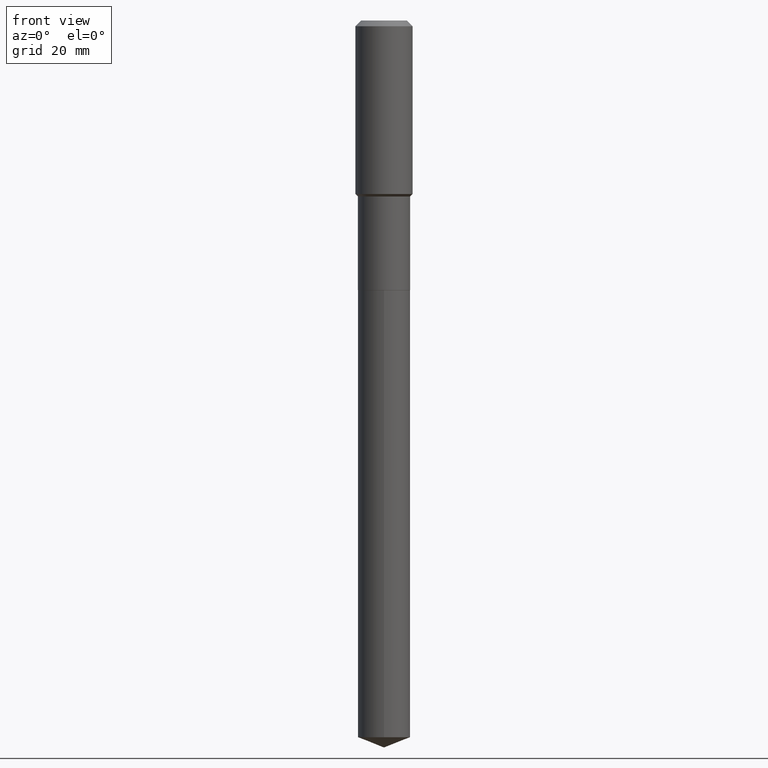
[diagram: clean part render]
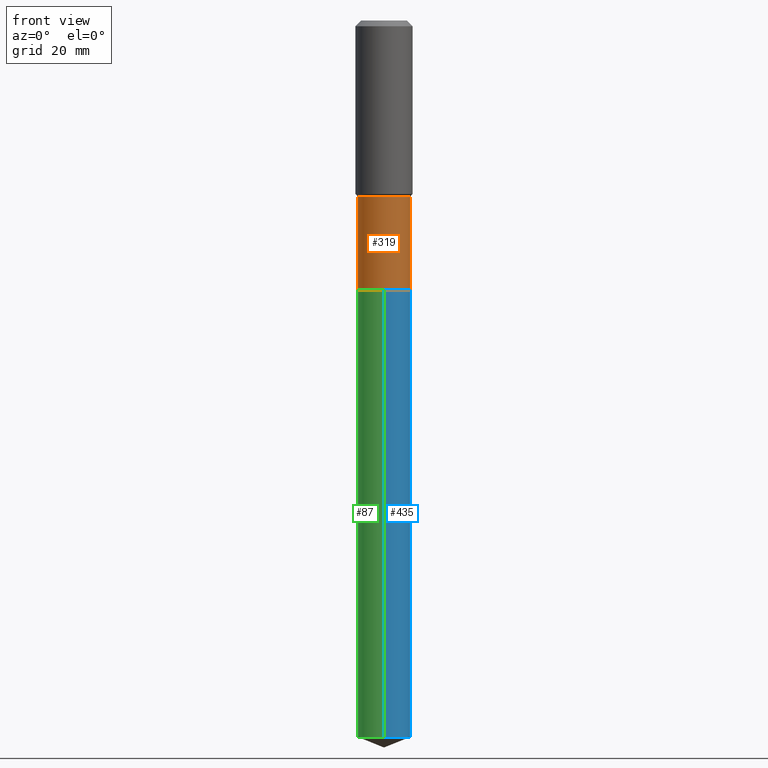
[diagram: same view with three faces highlighted in distinct colors, each labeled with its STEP entity id]
A machine part, front view with three faces highlighted in distinct colors.
Their STEP definitions:

[orange] entity #319 — the highlighted cylindrical surface (edge-blend (fillet) strip) has radius 6.3995 mm, axis along (-0, 0, 1).
#30 = VERTEX_POINT ( 'NONE', #431 ) ;
#41 = AXIS2_PLACEMENT_3D ( 'NONE', #142, #176, #416 ) ;
#43 = EDGE_CURVE ( 'NONE', #74, #30, #157, .T. ) ;
#51 = CIRCLE ( 'NONE', #41, 0.2519499999999998963 ) ;
#59 = DIRECTION ( 'NONE',  ( 1.000000000000000000, -6.982962677686267499E-15, 4.876176775795935793E-29 ) ) ;
#74 = VERTEX_POINT ( 'NONE', #403 ) ;
#101 = EDGE_CURVE ( 'NONE', #137, #399, #328, .T. ) ;
#105 = EDGE_LOOP ( 'NONE', ( #460, #369, #228, #439 ) ) ;
#111 = DIRECTION ( 'NONE',  ( -2.445468806185136877E-29, 3.491481338843145188E-15, 1.000000000000000000 ) ) ;
#117 = CARTESIAN_POINT ( 'NONE',  ( -0.2519500000000000073, -5.706172585815604588E-15, -2.598000000000000753 ) ) ;
#137 = VERTEX_POINT ( 'NONE', #117 ) ;
#142 = CARTESIAN_POINT ( 'NONE',  ( 4.147759642170611054E-29, -5.921901498811861064E-15, -1.696100000000000607 ) ) ;
#145 = CYLINDRICAL_SURFACE ( 'NONE', #456, 0.2519499999999999518 ) ;
#157 = LINE ( 'NONE', #179, #297 ) ;
#176 = DIRECTION ( 'NONE',  ( -2.445468806185136597E-29, 3.491481338843145583E-15, 1.000000000000000000 ) ) ;
#179 = CARTESIAN_POINT ( 'NONE',  ( 0.2519499999999999518, -1.759357446643054800E-15, 1.228552738661785732E-29 ) ) ;
#182 = DIRECTION ( 'NONE',  ( -2.445468806185136597E-29, 3.491481338843145583E-15, 1.000000000000000000 ) ) ;
#228 = ORIENTED_EDGE ( 'NONE', *, *, #43, .T. ) ;
#239 = EDGE_CURVE ( 'NONE', #137, #74, #330, .T. ) ;
#278 = VECTOR ( 'NONE', #111, 39.37007874015748143 ) ;
#283 = DIRECTION ( 'NONE',  ( -2.445468806185136597E-29, 3.491481338843145583E-15, 1.000000000000000000 ) ) ;
#295 = FACE_OUTER_BOUND ( 'NONE', #105, .T. ) ;
#297 = VECTOR ( 'NONE', #483, 39.37007874015748143 ) ;
#319 = ADVANCED_FACE ( 'NONE', ( #295 ), #145, .T. ) ;
#328 = LINE ( 'NONE', #420, #278 ) ;
#330 = CIRCLE ( 'NONE', #392, 0.2519500000000000073 ) ;
#333 = CARTESIAN_POINT ( 'NONE',  ( -0.2519499999999998963, -5.706172585815605377E-15, -1.696100000000000607 ) ) ;
#369 = ORIENTED_EDGE ( 'NONE', *, *, #239, .T. ) ;
#392 = AXIS2_PLACEMENT_3D ( 'NONE', #486, #283, #446 ) ;
#399 = VERTEX_POINT ( 'NONE', #333 ) ;
#403 = CARTESIAN_POINT ( 'NONE',  ( 0.2519500000000000073, -1.083022596495754904E-14, -2.598000000000000753 ) ) ;
#405 = CARTESIAN_POINT ( 'NONE',  ( 0.000000000000000000, 0.000000000000000000, 0.000000000000000000 ) ) ;
#416 = DIRECTION ( 'NONE',  ( 1.000000000000000000, -6.982962677686269077E-15, 0.000000000000000000 ) ) ;
#420 = CARTESIAN_POINT ( 'NONE',  ( -0.2519499999999999518, 1.790212422747572076E-15, -1.239325695989723260E-29 ) ) ;
#431 = CARTESIAN_POINT ( 'NONE',  ( 0.2519499999999998963, -7.681258945454915470E-15, -1.696100000000000607 ) ) ;
#439 = ORIENTED_EDGE ( 'NONE', *, *, #444, .F. ) ;
#444 = EDGE_CURVE ( 'NONE', #399, #30, #51, .T. ) ;
#446 = DIRECTION ( 'NONE',  ( 1.000000000000000000, -6.982962677686265922E-15, 0.000000000000000000 ) ) ;
#456 = AXIS2_PLACEMENT_3D ( 'NONE', #405, #182, #59 ) ;
#460 = ORIENTED_EDGE ( 'NONE', *, *, #101, .F. ) ;
#483 = DIRECTION ( 'NONE',  ( -2.445468806185136877E-29, 3.491481338843145188E-15, 1.000000000000000000 ) ) ;
#486 = CARTESIAN_POINT ( 'NONE',  ( 6.353327958468985739E-29, -9.070868518314495419E-15, -2.598000000000000753 ) ) ;

[blue] entity #435 — the highlighted cylindrical surface (edge-blend (fillet) strip) has radius 6.3995 mm, axis along (-0, 0, 1).
#1 = ORIENTED_EDGE ( 'NONE', *, *, #178, .T. ) ;
#3 = CARTESIAN_POINT ( 'NONE',  ( 1.790212422747741681E-15, 0.2519499999999759710, -6.908654255668817967 ) ) ;
#7 = DIRECTION ( 'NONE',  ( -2.445440840805038678E-29, 3.491521386859136235E-15, 1.000000000000000000 ) ) ;
#14 = CARTESIAN_POINT ( 'NONE',  ( 1.790212422747741681E-15, 0.2519499999999909035, -2.598500000000001808 ) ) ;
#23 = VERTEX_POINT ( 'NONE', #14 ) ;
#25 = CARTESIAN_POINT ( 'NONE',  ( 6.354550692872079662E-29, -9.072614258983917712E-15, -2.598500000000000920 ) ) ;
#28 = DIRECTION ( 'NONE',  ( -2.445440840805038678E-29, 3.491521386859136235E-15, 1.000000000000000000 ) ) ;
#33 = EDGE_LOOP ( 'NONE', ( #1, #306, #91, #294 ) ) ;
#38 = CARTESIAN_POINT ( 'NONE',  ( -1.759357446642991099E-15, -0.2519500000000090556, -2.598499999999999588 ) ) ;
#44 = LINE ( 'NONE', #150, #114 ) ;
#56 = DIRECTION ( 'NONE',  ( -2.445440840805038678E-29, 3.491521386859136235E-15, 1.000000000000000000 ) ) ;
#68 = VECTOR ( 'NONE', #324, 39.37007874015748143 ) ;
#73 = DIRECTION ( 'NONE',  ( -6.982962677686265922E-15, -1.000000000000000000, 4.337127197720600657E-15 ) ) ;
#83 = EDGE_CURVE ( 'NONE', #130, #23, #160, .T. ) ;
#91 = ORIENTED_EDGE ( 'NONE', *, *, #83, .F. ) ;
#99 = CARTESIAN_POINT ( 'NONE',  ( -1.759357446642991099E-15, -0.2519500000000090556, -2.598499999999999588 ) ) ;
#102 = CARTESIAN_POINT ( 'NONE',  ( 6.354550692872079662E-29, -9.072614258983917712E-15, -2.598500000000000920 ) ) ;
#106 = LINE ( 'NONE', #99, #68 ) ;
#113 = DIRECTION ( 'NONE',  ( -2.445440840805038678E-29, 3.491521386859136235E-15, 1.000000000000000000 ) ) ;
#114 = VECTOR ( 'NONE', #113, 39.37007874015748143 ) ;
#130 = VERTEX_POINT ( 'NONE', #38 ) ;
#150 = CARTESIAN_POINT ( 'NONE',  ( 1.790212422747635579E-15, 0.2519499999999909035, -2.598500000000001808 ) ) ;
#160 = CIRCLE ( 'NONE', #413, 0.2519500000000000073 ) ;
#178 = EDGE_CURVE ( 'NONE', #209, #225, #191, .T. ) ;
#191 = CIRCLE ( 'NONE', #315, 0.2519500000000000073 ) ;
#209 = VERTEX_POINT ( 'NONE', #377 ) ;
#210 = FACE_OUTER_BOUND ( 'NONE', #33, .T. ) ;
#225 = VERTEX_POINT ( 'NONE', #3 ) ;
#233 = EDGE_CURVE ( 'NONE', #225, #23, #44, .T. ) ;
#256 = DIRECTION ( 'NONE',  ( -6.982962677686265922E-15, -1.000000000000000000, 4.337127197720600657E-15 ) ) ;
#272 = EDGE_CURVE ( 'NONE', #209, #130, #106, .T. ) ;
#279 = AXIS2_PLACEMENT_3D ( 'NONE', #102, #28, #256 ) ;
#294 = ORIENTED_EDGE ( 'NONE', *, *, #272, .F. ) ;
#304 = CARTESIAN_POINT ( 'NONE',  ( 1.689477793985424513E-28, -2.412161002331351193E-14, -6.908654255668817079 ) ) ;
#306 = ORIENTED_EDGE ( 'NONE', *, *, #233, .T. ) ;
#315 = AXIS2_PLACEMENT_3D ( 'NONE', #304, #7, #73 ) ;
#324 = DIRECTION ( 'NONE',  ( -2.445440840805038678E-29, 3.491521386859136235E-15, 1.000000000000000000 ) ) ;
#359 = DIRECTION ( 'NONE',  ( -6.982962677686265922E-15, -1.000000000000000000, 4.337127197720600657E-15 ) ) ;
#370 = CYLINDRICAL_SURFACE ( 'NONE', #279, 0.2519500000000000073 ) ;
#377 = CARTESIAN_POINT ( 'NONE',  ( -1.759357446642886378E-15, -0.2519500000000241546, -6.908654255668815303 ) ) ;
#413 = AXIS2_PLACEMENT_3D ( 'NONE', #25, #56, #359 ) ;
#435 = ADVANCED_FACE ( 'NONE', ( #210 ), #370, .T. ) ;

[green] entity #87 — the highlighted cylindrical surface (edge-blend (fillet) strip) has radius 6.3995 mm, axis along (-0, 0, 1).
#3 = CARTESIAN_POINT ( 'NONE',  ( 1.790212422747741681E-15, 0.2519499999999759710, -6.908654255668817967 ) ) ;
#14 = CARTESIAN_POINT ( 'NONE',  ( 1.790212422747741681E-15, 0.2519499999999909035, -2.598500000000001808 ) ) ;
#23 = VERTEX_POINT ( 'NONE', #14 ) ;
#38 = CARTESIAN_POINT ( 'NONE',  ( -1.759357446642991099E-15, -0.2519500000000090556, -2.598499999999999588 ) ) ;
#42 = CARTESIAN_POINT ( 'NONE',  ( 1.689477793985424513E-28, -2.412161002331351193E-14, -6.908654255668817079 ) ) ;
#44 = LINE ( 'NONE', #150, #114 ) ;
#68 = VECTOR ( 'NONE', #324, 39.37007874015748143 ) ;
#87 = ADVANCED_FACE ( 'NONE', ( #139 ), #293, .T. ) ;
#88 = CIRCLE ( 'NONE', #103, 0.2519500000000000073 ) ;
#95 = EDGE_LOOP ( 'NONE', ( #169, #448, #286, #317 ) ) ;
#99 = CARTESIAN_POINT ( 'NONE',  ( -1.759357446642991099E-15, -0.2519500000000090556, -2.598499999999999588 ) ) ;
#103 = AXIS2_PLACEMENT_3D ( 'NONE', #190, #463, #262 ) ;
#106 = LINE ( 'NONE', #99, #68 ) ;
#113 = DIRECTION ( 'NONE',  ( -2.445440840805038678E-29, 3.491521386859136235E-15, 1.000000000000000000 ) ) ;
#114 = VECTOR ( 'NONE', #113, 39.37007874015748143 ) ;
#119 = DIRECTION ( 'NONE',  ( -2.445440840805038678E-29, 3.491521386859136235E-15, 1.000000000000000000 ) ) ;
#129 = DIRECTION ( 'NONE',  ( -2.445440840805038678E-29, 3.491521386859136235E-15, 1.000000000000000000 ) ) ;
#130 = VERTEX_POINT ( 'NONE', #38 ) ;
#139 = FACE_OUTER_BOUND ( 'NONE', #95, .T. ) ;
#150 = CARTESIAN_POINT ( 'NONE',  ( 1.790212422747635579E-15, 0.2519499999999909035, -2.598500000000001808 ) ) ;
#169 = ORIENTED_EDGE ( 'NONE', *, *, #233, .F. ) ;
#190 = CARTESIAN_POINT ( 'NONE',  ( 6.354550692872079662E-29, -9.072614258983917712E-15, -2.598500000000000920 ) ) ;
#192 = CIRCLE ( 'NONE', #316, 0.2519500000000000073 ) ;
#202 = AXIS2_PLACEMENT_3D ( 'NONE', #284, #129, #207 ) ;
#207 = DIRECTION ( 'NONE',  ( -6.982962677686265922E-15, -1.000000000000000000, 4.337127197720600657E-15 ) ) ;
#209 = VERTEX_POINT ( 'NONE', #377 ) ;
#225 = VERTEX_POINT ( 'NONE', #3 ) ;
#233 = EDGE_CURVE ( 'NONE', #225, #23, #44, .T. ) ;
#262 = DIRECTION ( 'NONE',  ( -6.982962677686265922E-15, -1.000000000000000000, 4.337127197720600657E-15 ) ) ;
#272 = EDGE_CURVE ( 'NONE', #209, #130, #106, .T. ) ;
#284 = CARTESIAN_POINT ( 'NONE',  ( 6.354550692872079662E-29, -9.072614258983917712E-15, -2.598500000000000920 ) ) ;
#286 = ORIENTED_EDGE ( 'NONE', *, *, #272, .T. ) ;
#293 = CYLINDRICAL_SURFACE ( 'NONE', #202, 0.2519500000000000073 ) ;
#316 = AXIS2_PLACEMENT_3D ( 'NONE', #42, #119, #340 ) ;
#317 = ORIENTED_EDGE ( 'NONE', *, *, #477, .F. ) ;
#324 = DIRECTION ( 'NONE',  ( -2.445440840805038678E-29, 3.491521386859136235E-15, 1.000000000000000000 ) ) ;
#340 = DIRECTION ( 'NONE',  ( -6.982962677686265922E-15, -1.000000000000000000, 4.337127197720600657E-15 ) ) ;
#377 = CARTESIAN_POINT ( 'NONE',  ( -1.759357446642886378E-15, -0.2519500000000241546, -6.908654255668815303 ) ) ;
#448 = ORIENTED_EDGE ( 'NONE', *, *, #472, .T. ) ;
#463 = DIRECTION ( 'NONE',  ( -2.445440840805038678E-29, 3.491521386859136235E-15, 1.000000000000000000 ) ) ;
#472 = EDGE_CURVE ( 'NONE', #225, #209, #192, .T. ) ;
#477 = EDGE_CURVE ( 'NONE', #23, #130, #88, .T. ) ;